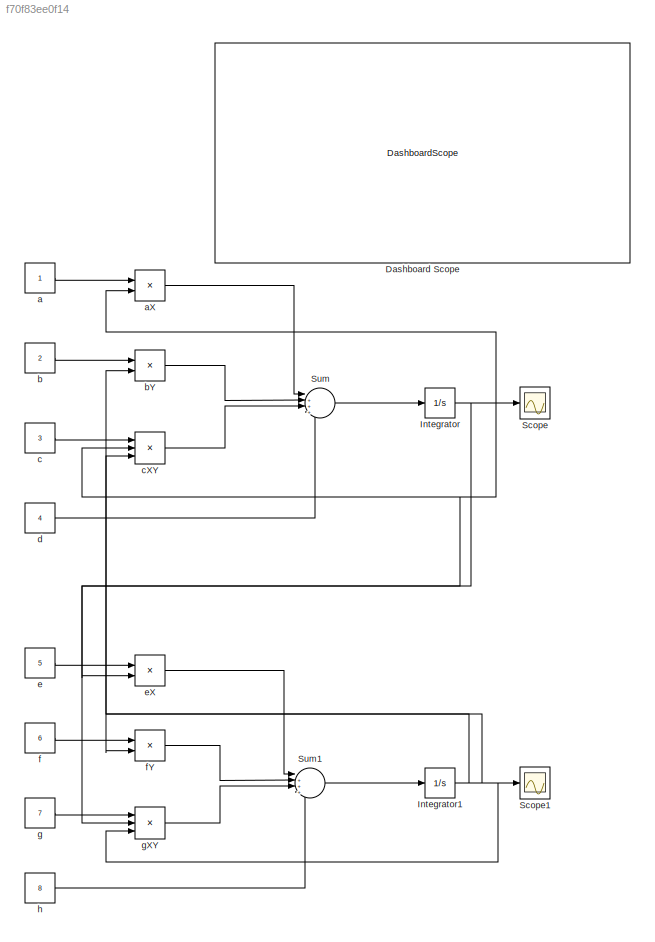
MODEL slx_f70f83ee0f14
KIND model
CONFIG AbsTol = auto
CONFIG EnableMultiTasking = off
CONFIG FixedStep = auto
CONFIG MaxStep = auto
CONFIG MinStep = auto
CONFIG RelTol = 1e-3
CONFIG SampleTimeConstraint = Unconstrained
CONFIG SolverName = VariableStepAuto
CONFIG StartTime = 0.0
CONFIG StopTime = .03
BLOCK [DashboardScope] Dashboard Scope
BLOCK [Integrator] Integrator
  InitialCondition = 10
  Ports = [1, 1]
BLOCK [Integrator] Integrator1
  InitialCondition = 1
  Ports = [1, 1]
BLOCK [Scope] Scope
  Floating = off
  NumInputPorts = 1
  Ports = [1]
  ScopeSpecificationString = Simulink.scopes.TimeScopeBlockCfg('CurrentConfiguration', extmgr.ConfigurationSet(extmgr.Configuration('Core','General UI',true),extmgr.Configuration('Core','Source UI',true),extmgr.Configuration('Sources','WiredSimulink',true),extmgr.Configuration('Visuals','Time Domain',true,'SerializedDisplays',{struct('MinYLimReal','8.54313','MaxYLimReal','23.11187','YLabelReal','','MinYLimMag','8.54313','MaxY...<+1332ch>
BLOCK [Scope] Scope1
  Floating = off
  NumInputPorts = 1
  Ports = [1]
  ScopeSpecificationString = Simulink.scopes.TimeScopeBlockCfg('CurrentConfiguration', extmgr.ConfigurationSet(extmgr.Configuration('Core','General UI',true),extmgr.Configuration('Core','Source UI',true),extmgr.Configuration('Sources','WiredSimulink',true,'DataLoggingVariableName','ScopeData1'),extmgr.Configuration('Visuals','Time Domain',true,'SerializedDisplays',{struct('MinYLimReal','-2.56019','MaxYLimReal','33.04171','YLa...<+1374ch>
BLOCK [Sum] Sum
  Inputs = |++++
  Ports = [4, 1]
BLOCK [Sum] Sum1
  Inputs = |++++
  Ports = [4, 1]
BLOCK [Constant] a
BLOCK [Product] aX
  Ports = [2, 1]
BLOCK [Constant] b
  Value = 2
BLOCK [Product] bY
  Ports = [2, 1]
BLOCK [Constant] c
  Value = 3
BLOCK [Product] cXY
  Inputs = 3
  Ports = [3, 1]
BLOCK [Constant] d
  Value = 4
BLOCK [Constant] e
  Value = 5
BLOCK [Product] eX
  Ports = [2, 1]
BLOCK [Constant] f
  Value = 6
BLOCK [Product] fY
  Ports = [2, 1]
BLOCK [Constant] g
  Value = 7
BLOCK [Product] gXY
  Inputs = 3
  Ports = [3, 1]
BLOCK [Constant] h
  Value = 8
NET Integrator1:1 -> Scope1:1, bY:2, cXY:3, fY:2, gXY:3
NET Integrator:1 -> Scope:1, aX:2, cXY:2, eX:2, gXY:2
LINE Sum1:1 -> Integrator1:1
LINE Sum:1 -> Integrator:1
LINE a:1 -> aX:1
LINE aX:1 -> Sum:1
LINE b:1 -> bY:1
LINE bY:1 -> Sum:2
LINE c:1 -> cXY:1
LINE cXY:1 -> Sum:3
LINE d:1 -> Sum:4
LINE e:1 -> eX:1
LINE eX:1 -> Sum1:1
LINE f:1 -> fY:1
LINE fY:1 -> Sum1:2
LINE g:1 -> gXY:1
LINE gXY:1 -> Sum1:3
LINE h:1 -> Sum1:4
note: NET lines group one-source signal fan-out (src -> all destinations, sorted); 1:1 wires keep LINE
